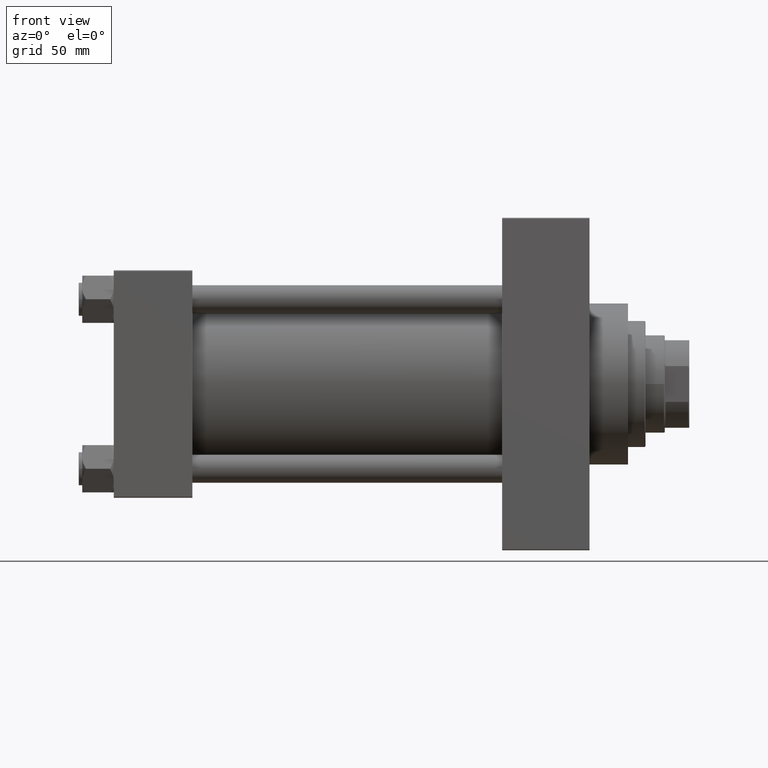
[diagram: clean part render]
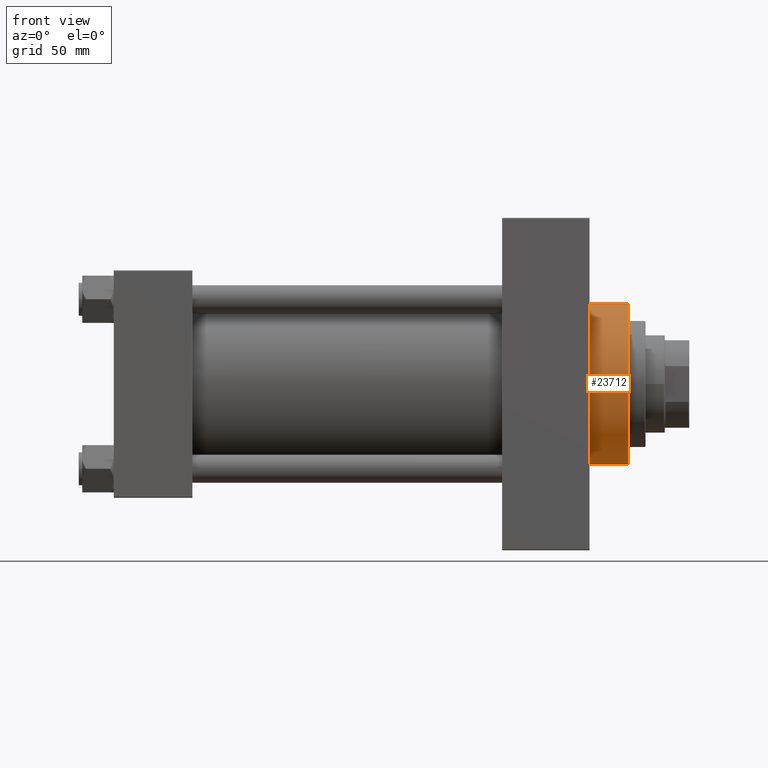
[diagram: same view with one face highlighted and labeled with its STEP entity id]
A machine part, front view. The second image highlights one B-rep face of the part: STEP entity #23712.
In plain terms, the highlighted cylindrical surface (partial cylindrical patch) has radius 46 mm, axis along (-1, -0, -0).
Its self-contained STEP definition (entity closure, byte-faithful):
#827 = CIRCLE ( 'NONE', #7749, 46.00000000000000000 ) ;
#2318 = DIRECTION ( 'NONE',  ( 0.000000000000000000, 0.000000000000000000, -1.000000000000000000 ) ) ;
#3793 = CARTESIAN_POINT ( 'NONE',  ( 294.0000000000000000, 0.000000000000000000, 0.000000000000000000 ) ) ;
#5600 = DIRECTION ( 'NONE',  ( -1.000000000000000000, -0.000000000000000000, -0.000000000000000000 ) ) ;
#6059 = FACE_OUTER_BOUND ( 'NONE', #23819, .T. ) ;
#6402 = VERTEX_POINT ( 'NONE', #36680 ) ;
#7749 = AXIS2_PLACEMENT_3D ( 'NONE', #3793, #25743, #29598 ) ;
#8473 = EDGE_CURVE ( 'NONE', #43444, #30698, #23699, .T. ) ;
#8840 = CARTESIAN_POINT ( 'NONE',  ( 271.9999999999999432, 0.000000000000000000, 46.00000000000000000 ) ) ;
#9215 = DIRECTION ( 'NONE',  ( 0.000000000000000000, 0.000000000000000000, 1.000000000000000000 ) ) ;
#9314 = VECTOR ( 'NONE', #30213, 1000.000000000000000 ) ;
#12078 = ORIENTED_EDGE ( 'NONE', *, *, #8473, .F. ) ;
#13772 = CARTESIAN_POINT ( 'NONE',  ( 271.9999999999999432, 5.633375276077824704E-15, -46.00000000000000000 ) ) ;
#18140 = EDGE_CURVE ( 'NONE', #6402, #26902, #31816, .T. ) ;
#18972 = VECTOR ( 'NONE', #35439, 1000.000000000000000 ) ;
#20737 = CARTESIAN_POINT ( 'NONE',  ( 294.0000000000000000, 0.000000000000000000, 46.00000000000000000 ) ) ;
#21137 = CARTESIAN_POINT ( 'NONE',  ( 271.9999999999999432, 0.000000000000000000, 0.000000000000000000 ) ) ;
#23699 = LINE ( 'NONE', #27328, #9314 ) ;
#23712 = ADVANCED_FACE ( 'NONE', ( #6059 ), #42500, .T. ) ;
#23819 = EDGE_LOOP ( 'NONE', ( #12078, #47654, #45869, #45613 ) ) ;
#25184 = AXIS2_PLACEMENT_3D ( 'NONE', #35015, #5600, #9215 ) ;
#25743 = DIRECTION ( 'NONE',  ( 1.000000000000000000, 0.000000000000000000, 0.000000000000000000 ) ) ;
#26902 = VERTEX_POINT ( 'NONE', #8840 ) ;
#27328 = CARTESIAN_POINT ( 'NONE',  ( 294.0000000000000000, 5.633375276077824704E-15, -46.00000000000000000 ) ) ;
#29598 = DIRECTION ( 'NONE',  ( 0.000000000000000000, 0.000000000000000000, -1.000000000000000000 ) ) ;
#30213 = DIRECTION ( 'NONE',  ( -1.000000000000000000, -0.000000000000000000, -0.000000000000000000 ) ) ;
#30698 = VERTEX_POINT ( 'NONE', #13772 ) ;
#31110 = EDGE_CURVE ( 'NONE', #26902, #30698, #37786, .T. ) ;
#31816 = LINE ( 'NONE', #20737, #18972 ) ;
#32132 = EDGE_CURVE ( 'NONE', #6402, #43444, #827, .T. ) ;
#33929 = AXIS2_PLACEMENT_3D ( 'NONE', #21137, #47437, #2318 ) ;
#35015 = CARTESIAN_POINT ( 'NONE',  ( 294.0000000000000000, 0.000000000000000000, 0.000000000000000000 ) ) ;
#35439 = DIRECTION ( 'NONE',  ( -1.000000000000000000, -0.000000000000000000, -0.000000000000000000 ) ) ;
#36680 = CARTESIAN_POINT ( 'NONE',  ( 294.0000000000000000, 0.000000000000000000, 46.00000000000000000 ) ) ;
#37786 = CIRCLE ( 'NONE', #33929, 46.00000000000000000 ) ;
#39876 = CARTESIAN_POINT ( 'NONE',  ( 294.0000000000000000, 5.633375276077824704E-15, -46.00000000000000000 ) ) ;
#42500 = CYLINDRICAL_SURFACE ( 'NONE', #25184, 46.00000000000000000 ) ;
#43444 = VERTEX_POINT ( 'NONE', #39876 ) ;
#45613 = ORIENTED_EDGE ( 'NONE', *, *, #31110, .T. ) ;
#45869 = ORIENTED_EDGE ( 'NONE', *, *, #18140, .T. ) ;
#47437 = DIRECTION ( 'NONE',  ( 1.000000000000000000, 0.000000000000000000, 0.000000000000000000 ) ) ;
#47654 = ORIENTED_EDGE ( 'NONE', *, *, #32132, .F. ) ;